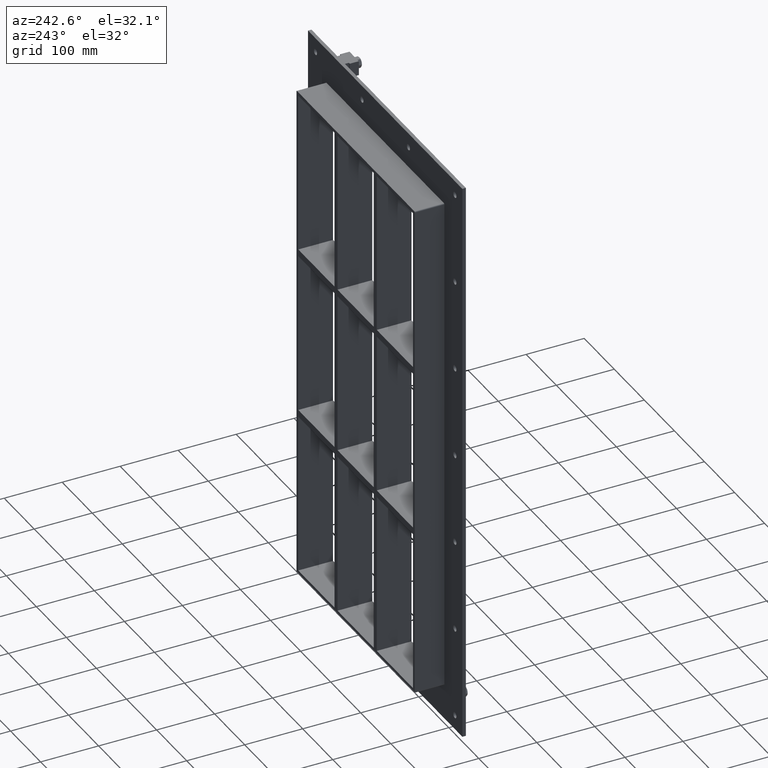
[diagram: clean part render]
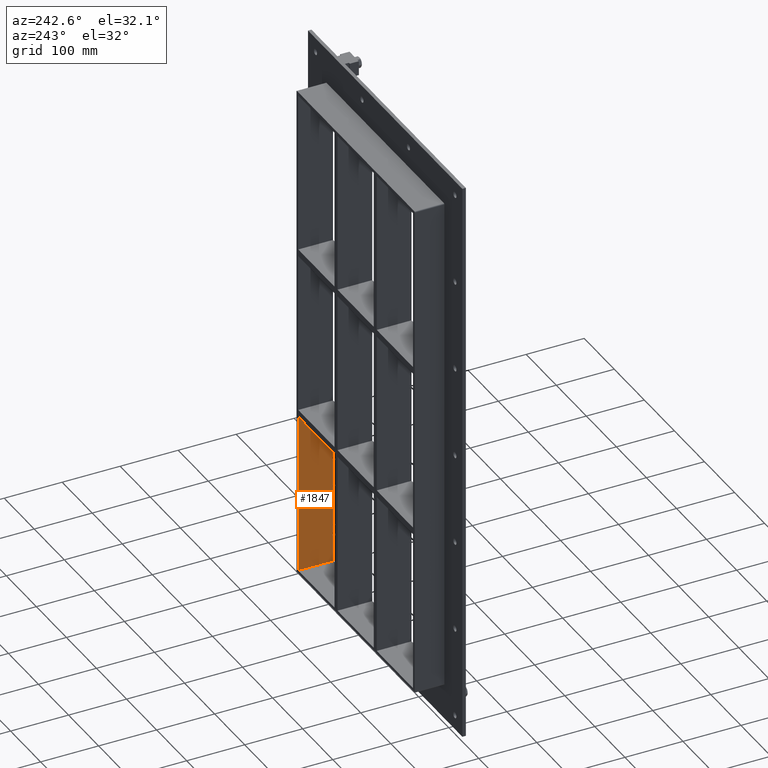
[diagram: same view with one face highlighted and labeled with its STEP entity id]
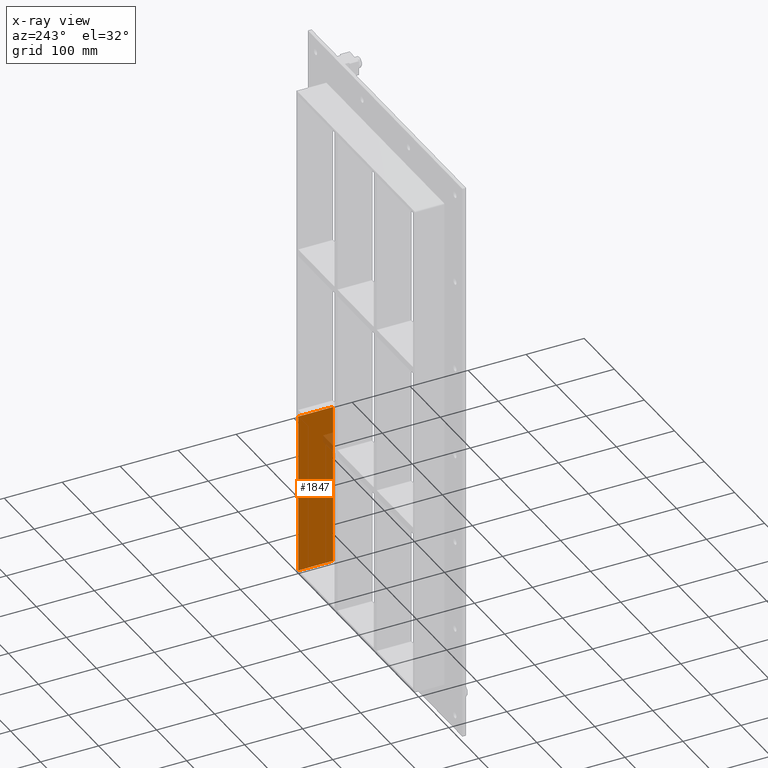
[diagram: x-ray of the same camera — body ghosted, the highlighted face saturated]
A machine part, auxiliary view. The second image highlights one B-rep face of the part: STEP entity #1847.
The next image is the same camera in x-ray: the body ghosted, the highlighted face saturated — about 2% of this face is hidden behind the body in this view.
In plain terms, the highlighted planar face has unit normal (1, 0, 0).
Its self-contained STEP definition (entity closure, byte-faithful):
#1281=CARTESIAN_POINT('',(190.75000000000003,57.0,-429.00000000000006));
#1282=VERTEX_POINT('',#1281);
#1289=CARTESIAN_POINT('',(190.7500000000073,57.0,-151.00000000001097));
#1290=VERTEX_POINT('',#1289);
#1291=CARTESIAN_POINT('',(190.75000000000003,57.0,-429.00000000000011));
#1292=DIRECTION('',(0.0,0.0,1.0));
#1293=VECTOR('',#1292,277.9999999999892);
#1294=LINE('',#1291,#1293);
#1295=EDGE_CURVE('',#1282,#1290,#1294,.T.);
#1454=CARTESIAN_POINT('',(190.75000000000003,-3.0,-429.00000000000006));
#1455=VERTEX_POINT('',#1454);
#1462=CARTESIAN_POINT('',(190.75000000000003,56.999999999999993,-429.00000000000006));
#1463=DIRECTION('',(0.0,-1.0,0.0));
#1464=VECTOR('',#1463,59.999999999999993);
#1465=LINE('',#1462,#1464);
#1466=EDGE_CURVE('',#1282,#1455,#1465,.T.);
#1646=CARTESIAN_POINT('',(190.75000000000728,-3.0,-151.00000000001097));
#1647=VERTEX_POINT('',#1646);
#1654=CARTESIAN_POINT('',(190.75000000000003,-3.0,-151.00000000001091));
#1655=DIRECTION('',(0.0,0.0,-1.0));
#1656=VECTOR('',#1655,277.9999999999892);
#1657=LINE('',#1654,#1656);
#1658=EDGE_CURVE('',#1647,#1455,#1657,.T.);
#1705=CARTESIAN_POINT('',(190.75000000000003,-3.0,-151.00000000001097));
#1706=DIRECTION('',(0.0,1.0,0.0));
#1707=VECTOR('',#1706,60.000000000000007);
#1708=LINE('',#1705,#1707);
#1709=EDGE_CURVE('',#1647,#1290,#1708,.T.);
#1836=CARTESIAN_POINT('',(190.75000000000003,0.0,429.00000000000006));
#1837=DIRECTION('',(1.0,0.0,0.0));
#1838=DIRECTION('',(0.0,0.0,-1.0));
#1839=AXIS2_PLACEMENT_3D('',#1836,#1837,#1838);
#1840=PLANE('',#1839);
#1841=ORIENTED_EDGE('',*,*,#1709,.T.);
#1842=ORIENTED_EDGE('',*,*,#1295,.F.);
#1843=ORIENTED_EDGE('',*,*,#1466,.T.);
#1844=ORIENTED_EDGE('',*,*,#1658,.F.);
#1845=EDGE_LOOP('',(#1841,#1842,#1843,#1844));
#1846=FACE_OUTER_BOUND('',#1845,.T.);
#1847=ADVANCED_FACE('',(#1846),#1840,.F.);